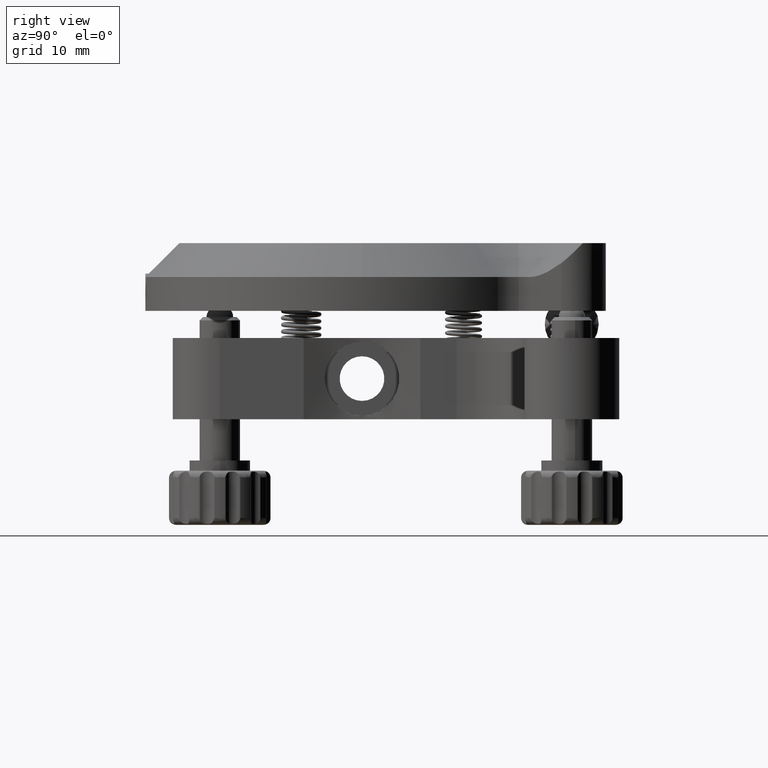
[diagram: clean part render]
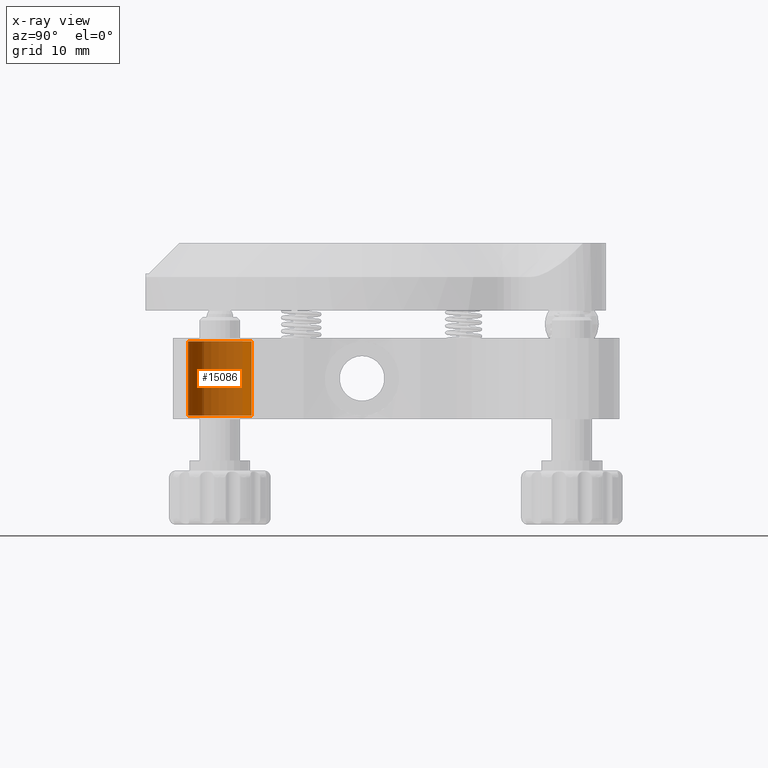
[diagram: x-ray — body ghosted, one internal face saturated and labeled with its STEP entity id]
A machine part, right view, then the same camera in x-ray: the body is ghosted and one INTERNAL B-rep face — a face not visible from any outside direction — is saturated and labeled: STEP entity #15086.
In plain terms, the highlighted cylindrical surface (edge-blend (fillet) strip) has radius 4.75 mm, axis along (0, -0, -1).
Its self-contained STEP definition (entity closure, byte-faithful):
#792 = FACE_OUTER_BOUND ( 'NONE', #15302, .T. ) ;
#1236 = DIRECTION ( 'NONE',  ( -1.504123283584650095E-15, 1.272270678210028003E-15, 1.000000000000000000 ) ) ;
#1419 = AXIS2_PLACEMENT_3D ( 'NONE', #34344, #17643, #14332 ) ;
#2628 = EDGE_CURVE ( 'NONE', #31892, #14806, #20266, .T. ) ;
#2678 = VERTEX_POINT ( 'NONE', #23905 ) ;
#3407 = CARTESIAN_POINT ( 'NONE',  ( 0.7247159308492087115, -56.69538886539817923, -15.49999999999898215 ) ) ;
#4771 = DIRECTION ( 'NONE',  ( -0.1525717749156220715, 0.9882923927153830501, 3.104242009642677331E-15 ) ) ;
#5280 = LINE ( 'NONE', #36056, #21573 ) ;
#6251 = ORIENTED_EDGE ( 'NONE', *, *, #22455, .T. ) ;
#6606 = CYLINDRICAL_SURFACE ( 'NONE', #20125, 4.750000000000046185 ) ;
#7402 = ORIENTED_EDGE ( 'NONE', *, *, #2628, .T. ) ;
#13040 = CIRCLE ( 'NONE', #1419, 4.750000000000046185 ) ;
#14307 = ORIENTED_EDGE ( 'NONE', *, *, #28469, .F. ) ;
#14332 = DIRECTION ( 'NONE',  ( 0.1525717749156220715, -0.9882923927153830501, -3.104242009642677331E-15 ) ) ;
#14806 = VERTEX_POINT ( 'NONE', #28234 ) ;
#15086 = ADVANCED_FACE ( 'NONE', ( #792 ), #6606, .T. ) ;
#15129 = DIRECTION ( 'NONE',  ( 1.504123283584650095E-15, -1.272270678210028003E-15, -1.000000000000000000 ) ) ;
#15297 = DIRECTION ( 'NONE',  ( 0.1525717749156220715, -0.9882923927153830501, -2.921639538487225468E-15 ) ) ;
#15302 = EDGE_LOOP ( 'NONE', ( #14307, #6251, #7402, #18703 ) ) ;
#16289 = DIRECTION ( 'NONE',  ( 1.504123283584650095E-15, -1.272270678210028003E-15, -1.000000000000000000 ) ) ;
#17140 = CARTESIAN_POINT ( 'NONE',  ( -0.7247159308491994967, -47.30661113460205058, -4.499999999999116262 ) ) ;
#17643 = DIRECTION ( 'NONE',  ( 1.504123283584650095E-15, -1.272270678210028003E-15, -1.000000000000000000 ) ) ;
#18703 = ORIENTED_EDGE ( 'NONE', *, *, #30267, .T. ) ;
#19045 = CARTESIAN_POINT ( 'NONE',  ( -7.562597471862318296E-15, -52.00100000000009004, -3.999999999999106493 ) ) ;
#19318 = AXIS2_PLACEMENT_3D ( 'NONE', #26299, #1236, #15297 ) ;
#20125 = AXIS2_PLACEMENT_3D ( 'NONE', #19045, #16289, #4771 ) ;
#20266 = LINE ( 'NONE', #34018, #33066 ) ;
#21573 = VECTOR ( 'NONE', #27605, 1000.000000000000000 ) ;
#21681 = CIRCLE ( 'NONE', #19318, 4.750000000000046185 ) ;
#22455 = EDGE_CURVE ( 'NONE', #2678, #31892, #13040, .T. ) ;
#23905 = CARTESIAN_POINT ( 'NONE',  ( 0.7247159308492101548, -56.69538886539818634, -4.499999999999102940 ) ) ;
#26299 = CARTESIAN_POINT ( 'NONE',  ( 1.066484444834458875E-14, -52.00100000000011136, -15.49999999999898925 ) ) ;
#27605 = DIRECTION ( 'NONE',  ( 1.504123283584650095E-15, -1.272270678210028003E-15, -1.000000000000000000 ) ) ;
#28234 = CARTESIAN_POINT ( 'NONE',  ( -0.7247159308492007179, -47.30661113460204348, -15.49999999999899636 ) ) ;
#28469 = EDGE_CURVE ( 'NONE', #2678, #29968, #5280, .T. ) ;
#29968 = VERTEX_POINT ( 'NONE', #3407 ) ;
#30267 = EDGE_CURVE ( 'NONE', #14806, #29968, #21681, .T. ) ;
#31892 = VERTEX_POINT ( 'NONE', #17140 ) ;
#33066 = VECTOR ( 'NONE', #15129, 1000.000000000000000 ) ;
#34018 = CARTESIAN_POINT ( 'NONE',  ( -0.7247159308492195917, -47.30661113460197242, -3.999999999999091838 ) ) ;
#34344 = CARTESIAN_POINT ( 'NONE',  ( -2.883931616670179317E-14, -52.00100000000012557, -4.499999999999110045 ) ) ;
#36056 = CARTESIAN_POINT ( 'NONE',  ( 0.7247159308492049368, -56.69538886539820055, -3.999999999999121592 ) ) ;